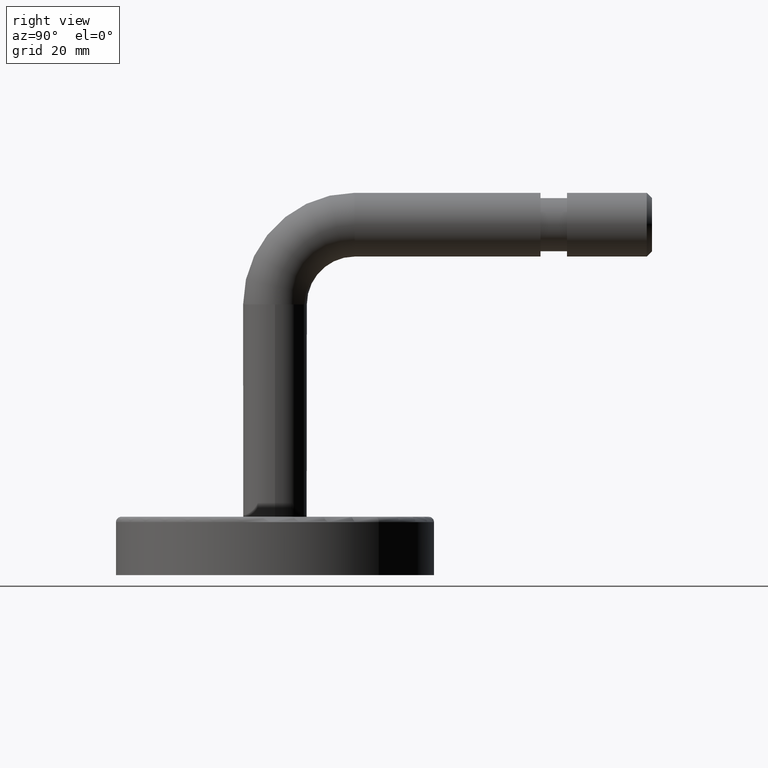
[diagram: clean part render]
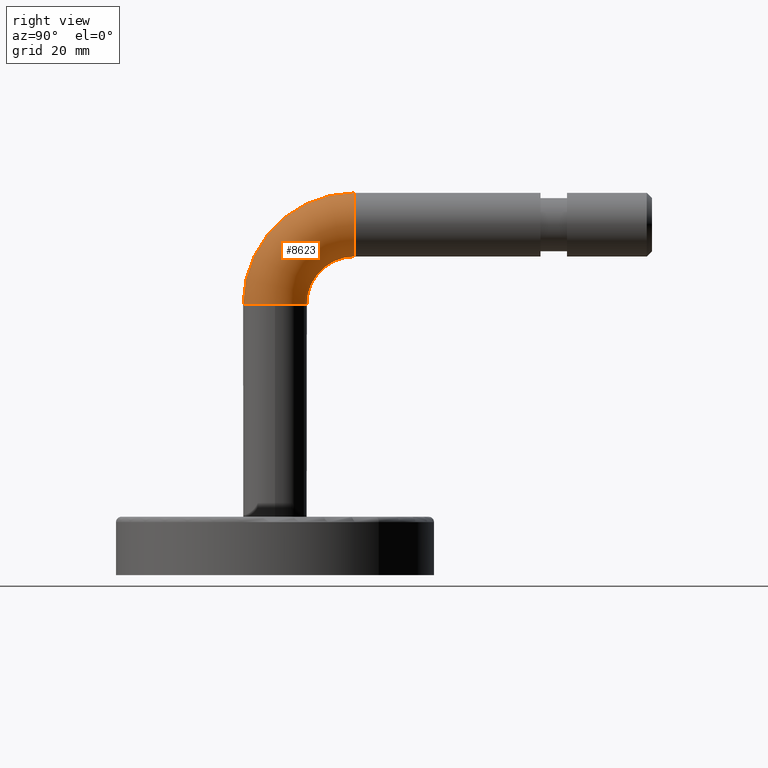
[diagram: same view with one face highlighted and labeled with its STEP entity id]
A machine part, right view. The second image highlights one B-rep face of the part: STEP entity #8623.
In plain terms, the highlighted toroidal blend (fillet) surface has major radius 15 mm and minor (blend) radius 6 mm.
Its self-contained STEP definition (entity closure, byte-faithful):
#21 = DIRECTION ( 'NONE',  ( 0.000000000000000000, 0.000000000000000000, 1.000000000000000000 ) ) ;
#516 = CIRCLE ( 'NONE', #12023, 6.000000000000000888 ) ;
#1414 = EDGE_CURVE ( 'NONE', #13158, #7274, #3146, .T. ) ;
#2026 = CARTESIAN_POINT ( 'NONE',  ( 0.000000000000000000, 0.000000000000000000, -51.00000000000000711 ) ) ;
#2556 = TOROIDAL_SURFACE ( 'NONE', #4823, 15.00000000000000000, 6.000000000000000888 ) ;
#2707 = DIRECTION ( 'NONE',  ( 0.000000000000000000, 0.000000000000000000, -1.000000000000000000 ) ) ;
#2854 = CARTESIAN_POINT ( 'NONE',  ( 0.000000000000000000, 15.00000000000000000, -51.00000000000000711 ) ) ;
#2950 = ORIENTED_EDGE ( 'NONE', *, *, #5102, .T. ) ;
#3146 = CIRCLE ( 'NONE', #9984, 6.000000000000000888 ) ;
#3557 = DIRECTION ( 'NONE',  ( 1.000000000000000000, 0.000000000000000000, 0.000000000000000000 ) ) ;
#4060 = AXIS2_PLACEMENT_3D ( 'NONE', #5230, #13494, #10126 ) ;
#4187 = VERTEX_POINT ( 'NONE', #12516 ) ;
#4277 = DIRECTION ( 'NONE',  ( 1.000000000000000000, 0.000000000000000000, 0.000000000000000000 ) ) ;
#4316 = CARTESIAN_POINT ( 'NONE',  ( -7.347880794884120722E-16, 15.00000000000000000, -51.00000000000000711 ) ) ;
#4823 = AXIS2_PLACEMENT_3D ( 'NONE', #2854, #8757, #2707 ) ;
#5048 = ORIENTED_EDGE ( 'NONE', *, *, #12076, .F. ) ;
#5102 = EDGE_CURVE ( 'NONE', #13158, #13649, #7308, .T. ) ;
#5230 = CARTESIAN_POINT ( 'NONE',  ( 0.000000000000000000, 15.00000000000000000, -51.00000000000000711 ) ) ;
#5322 = DIRECTION ( 'NONE',  ( 1.000000000000000000, 0.000000000000000000, 0.000000000000000000 ) ) ;
#5469 = DIRECTION ( 'NONE',  ( 1.000000000000000000, 0.000000000000000000, 0.000000000000000000 ) ) ;
#6209 = EDGE_CURVE ( 'NONE', #7274, #14217, #516, .T. ) ;
#6441 = CIRCLE ( 'NONE', #10063, 6.000000000000000888 ) ;
#6458 = DIRECTION ( 'NONE',  ( 0.000000000000000000, -1.000000000000000000, 0.000000000000000000 ) ) ;
#6553 = CARTESIAN_POINT ( 'NONE',  ( 0.000000000000000000, 15.00000000000000000, -66.00000000000000000 ) ) ;
#6727 = CARTESIAN_POINT ( 'NONE',  ( -7.347880794884119736E-16, 6.000000000000000888, -51.00000000000000711 ) ) ;
#6799 = DIRECTION ( 'NONE',  ( 0.000000000000000000, 0.000000000000000000, 1.000000000000000000 ) ) ;
#7274 = VERTEX_POINT ( 'NONE', #15073 ) ;
#7308 = CIRCLE ( 'NONE', #14586, 8.999999999999994671 ) ;
#7310 = ORIENTED_EDGE ( 'NONE', *, *, #12414, .T. ) ;
#7863 = FACE_OUTER_BOUND ( 'NONE', #10515, .T. ) ;
#8623 = ADVANCED_FACE ( 'NONE', ( #7863 ), #2556, .T. ) ;
#8651 = CIRCLE ( 'NONE', #4060, 21.00000000000000355 ) ;
#8757 = DIRECTION ( 'NONE',  ( 1.000000000000000000, 0.000000000000000000, 0.000000000000000000 ) ) ;
#9362 = CARTESIAN_POINT ( 'NONE',  ( 0.000000000000000000, 0.000000000000000000, -51.00000000000000711 ) ) ;
#9719 = CARTESIAN_POINT ( 'NONE',  ( 0.000000000000000000, -6.000000000000001776, -51.00000000000000711 ) ) ;
#9972 = ORIENTED_EDGE ( 'NONE', *, *, #6209, .F. ) ;
#9984 = AXIS2_PLACEMENT_3D ( 'NONE', #2026, #6799, #5469 ) ;
#10063 = AXIS2_PLACEMENT_3D ( 'NONE', #6553, #6458, #5322 ) ;
#10126 = DIRECTION ( 'NONE',  ( 0.000000000000000000, 0.000000000000000000, -1.000000000000000000 ) ) ;
#10515 = EDGE_LOOP ( 'NONE', ( #5048, #9972, #10693, #2950, #7310 ) ) ;
#10693 = ORIENTED_EDGE ( 'NONE', *, *, #1414, .F. ) ;
#12023 = AXIS2_PLACEMENT_3D ( 'NONE', #9362, #21, #3557 ) ;
#12076 = EDGE_CURVE ( 'NONE', #14217, #4187, #8651, .T. ) ;
#12414 = EDGE_CURVE ( 'NONE', #13649, #4187, #6441, .T. ) ;
#12516 = CARTESIAN_POINT ( 'NONE',  ( 7.347880794884114806E-16, 15.00000000000000000, -72.00000000000001421 ) ) ;
#12559 = DIRECTION ( 'NONE',  ( 0.000000000000000000, 0.000000000000000000, -1.000000000000000000 ) ) ;
#13158 = VERTEX_POINT ( 'NONE', #6727 ) ;
#13494 = DIRECTION ( 'NONE',  ( 1.000000000000000000, 0.000000000000000000, 0.000000000000000000 ) ) ;
#13649 = VERTEX_POINT ( 'NONE', #14822 ) ;
#14217 = VERTEX_POINT ( 'NONE', #9719 ) ;
#14586 = AXIS2_PLACEMENT_3D ( 'NONE', #4316, #4277, #12559 ) ;
#14822 = CARTESIAN_POINT ( 'NONE',  ( 0.000000000000000000, 15.00000000000000000, -60.00000000000000711 ) ) ;
#15073 = CARTESIAN_POINT ( 'NONE',  ( -6.000000000000000888, 0.000000000000000000, -51.00000000000000711 ) ) ;